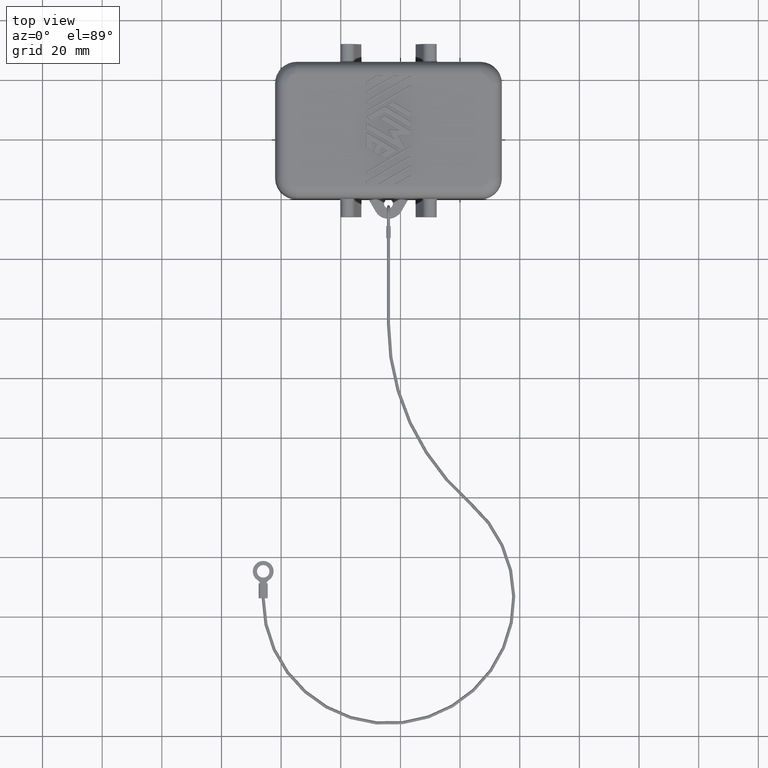
[diagram: clean part render]
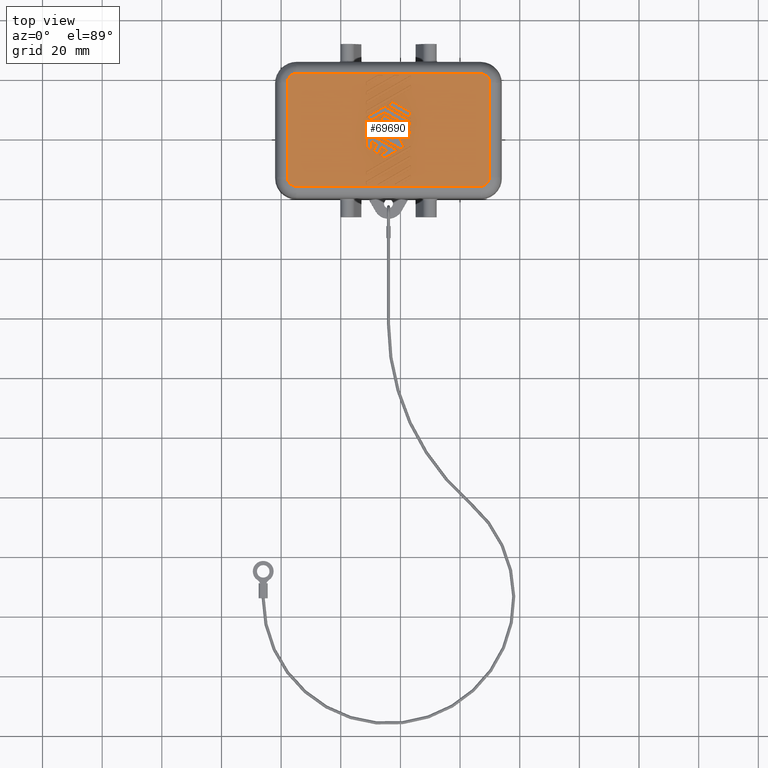
[diagram: same view with one face highlighted and labeled with its STEP entity id]
A machine part, top view. The second image highlights one B-rep face of the part: STEP entity #69690.
In plain terms, the highlighted planar face has unit normal (0, -0, -1).
Its self-contained STEP definition (entity closure, byte-faithful):
#6710=CARTESIAN_POINT('',(3.64452339403338,24.7894100356543,-17.5));
#6720=VERTEX_POINT('',#6710);
#6750=CARTESIAN_POINT('',(3.33066907387547E-17,24.7894100356543,-17.5));
#6760=DIRECTION('',(1.,2.22044604925031E-16,2.22044604925031E-16));
#6770=VECTOR('',#6760,1.);
#6780=LINE('',#6750,#6770);
#6790=CARTESIAN_POINT('',(4.68375387857468,24.7894100356543,-17.5));
#6800=VERTEX_POINT('',#6790);
#6810=EDGE_CURVE('',#6720,#6800,#6780,.T.);
#9670=CARTESIAN_POINT('',(6.06437772525531,-1.59262493562753,-17.5));
#9680=VERTEX_POINT('',#9670);
#9710=CARTESIAN_POINT('',(3.0644919560628,1.40726083356499,-17.5));
#9720=CARTESIAN_POINT('',(3.06449195925066,1.29463851105756,-17.5));
#9730=CARTESIAN_POINT('',(3.07083363684602,1.18210534542026,-17.5));
#9740=CARTESIAN_POINT('',(3.09265253355728,0.989133529365348,-17.5));
#9750=CARTESIAN_POINT('',(3.10512850437386,0.908410090754359,-17.5));
#9760=CARTESIAN_POINT('',(3.16873276785287,0.585063213576694,-17.5));
#9770=CARTESIAN_POINT('',(3.24651171568053,0.348761826884054,-17.5));
#9780=CARTESIAN_POINT('',(3.49973127288454,-0.186687310028338,-17.5));
#9790=CARTESIAN_POINT('',(3.69954000392188,-0.470408299957515,-17.5));
#9800=CARTESIAN_POINT('',(3.94312429782734,-0.713992593862981,-17.5));
#9810=CARTESIAN_POINT('',(4.11833058039966,-0.889198876435302,-17.5));
#9820=CARTESIAN_POINT('',(4.31456924718773,-1.04202243427547,-17.5));
#9830=CARTESIAN_POINT('',(4.74014340225401,-1.29592103016013,-17.5));
#9840=CARTESIAN_POINT('',(4.96783915979107,-1.39601800244634,-17.5));
#9850=CARTESIAN_POINT('',(5.37580289755995,-1.51795662614795,-17.5));
#9860=CARTESIAN_POINT('',(5.55043066844569,-1.55361416854059,-17.5));
#9870=CARTESIAN_POINT('',(5.8390431929904,-1.58627318350621,-17.5));
#9880=CARTESIAN_POINT('',(5.95166578690069,-1.59262493554124,-17.5));
#9890=CARTESIAN_POINT('',(6.06437772525531,-1.59262493562753,-17.5));
#9900=B_SPLINE_CURVE_WITH_KNOTS('',3,(#9710,#9720,#9730,#9740,#9750,
#9760,#9770,#9780,#9790,#9800,#9810,#9820,#9830,#9840,#9850,#9860,#9870,
#9880,#9890),.UNSPECIFIED.,.F.,.F.,(4,2,2,2,3,2,2,2,4),(0.,
0.562669956374639,0.970247012387034,2.20631531612829,3.92447664626049,
5.16032258106083,6.39616452604005,7.28405555892899,7.84709255107635),
.UNSPECIFIED.);
#9910=CARTESIAN_POINT('',(3.0644919560628,1.40726083356499,-17.5));
#9920=VERTEX_POINT('',#9910);
#9930=EDGE_CURVE('',#9920,#9680,#9900,.T.);
#11110=CARTESIAN_POINT('',(40.8285618986264,1.40726083356499,-17.5));
#11120=VERTEX_POINT('',#11110);
#11170=CARTESIAN_POINT('',(37.8286761294339,-1.59262493562753,-17.5));
#11180=CARTESIAN_POINT('',(37.9412984519414,-1.59262493243966,-17.5));
#11190=CARTESIAN_POINT('',(38.0538316175787,-1.5862832548443,-17.5));
#11200=CARTESIAN_POINT('',(38.2468034336072,-1.56446435813602,-17.5));
#11210=CARTESIAN_POINT('',(38.327526872192,-1.55198838732459,-17.5));
#11220=CARTESIAN_POINT('',(38.6508737493451,-1.48838412385934,-17.5));
#11230=CARTESIAN_POINT('',(38.8871751360398,-1.41060517603796,-17.5));
#11240=CARTESIAN_POINT('',(39.4226242729832,-1.15738561883675,-17.5));
#11250=CARTESIAN_POINT('',(39.7063452629375,-0.957576887787406,-17.5));
#11260=CARTESIAN_POINT('',(39.9499295568619,-0.713992593862983,-17.5));
#11270=CARTESIAN_POINT('',(40.1251358394248,-0.538786311300109,-17.5));
#11280=CARTESIAN_POINT('',(40.2779593972579,-0.342547644523721,-17.5));
#11290=CARTESIAN_POINT('',(40.5318579931346,0.0830265105162336,-17.5));
#11300=CARTESIAN_POINT('',(40.6319549654199,0.310722268038923,-17.5));
#11310=CARTESIAN_POINT('',(40.7538935891361,0.718686005817227,-17.5));
#11320=CARTESIAN_POINT('',(40.7895511315365,0.893313776728712,-17.5));
#11330=CARTESIAN_POINT('',(40.8222101465051,1.18192630129994,-17.5));
#11340=CARTESIAN_POINT('',(40.8285618985401,1.2945488952103,-17.5));
#11350=CARTESIAN_POINT('',(40.8285618986264,1.40726083356499,-17.5));
#11360=B_SPLINE_CURVE_WITH_KNOTS('',3,(#11170,#11180,#11190,#11200,
#11210,#11220,#11230,#11240,#11250,#11260,#11270,#11280,#11290,#11300,
#11310,#11320,#11330,#11340,#11350),.UNSPECIFIED.,.F.,.F.,(4,2,2,2,3,2,2
,2,4),(0.,0.562669956374504,0.970247012253541,2.20631531599435,
3.92447664625961,5.1603225809928,6.39616452590487,7.28405555892605,
7.84709255107333),.UNSPECIFIED.);
#11370=CARTESIAN_POINT('',(37.8286761294339,-1.59262493562753,-17.5));
#11380=VERTEX_POINT('',#11370);
#11390=EDGE_CURVE('',#11380,#11120,#11360,.T.);
#11930=CARTESIAN_POINT('',(15.9998191546914,24.7894100356543,-17.5));
#11940=VERTEX_POINT('',#11930);
#11970=CARTESIAN_POINT('',(3.33066907387547E-17,24.7894100356543,-17.5))
;
#11980=DIRECTION('',(1.,2.22044604925031E-16,2.22044604925031E-16));
#11990=VECTOR('',#11980,1.);
#12000=LINE('',#11970,#11990);
#12010=CARTESIAN_POINT('',(18.078280123774,24.7894100356543,-17.5));
#12020=VERTEX_POINT('',#12010);
#12030=EDGE_CURVE('',#11940,#12020,#12000,.T.);
#13780=CARTESIAN_POINT('',(12.4779825126348,30.8894100356543,-17.5));
#13790=VERTEX_POINT('',#13780);
#13840=CARTESIAN_POINT('',(30.3552929820171,-0.0749999999999981,-17.5));
#13850=DIRECTION('',(0.499999999999987,-0.866025403784446,
1.11022302462516E-16));
#13860=VECTOR('',#13850,1.);
#13870=LINE('',#13840,#13860);
#13880=EDGE_CURVE('',#13790,#11940,#13870,.T.);
#22350=CARTESIAN_POINT('',(3.64452339403339,34.1894100356543,-17.5));
#22360=VERTEX_POINT('',#22350);
#22390=CARTESIAN_POINT('',(-16.1380429636755,-0.0750000000000004,-17.5))
;
#22400=DIRECTION('',(0.500000000000003,0.866025403784437,
1.11022302462516E-16));
#22410=VECTOR('',#22400,1.);
#22420=LINE('',#22390,#22410);
#22430=CARTESIAN_POINT('',(6.87768490149532,39.7894100356543,-17.5));
#22440=VERTEX_POINT('',#22430);
#22450=EDGE_CURVE('',#22360,#22440,#22420,.T.);
#23870=CARTESIAN_POINT('',(3.64452339403336,35.9894100356543,-17.5));
#23880=VERTEX_POINT('',#23870);
#23910=CARTESIAN_POINT('',(3.64452339403337,-3.33066907387547E-17,-17.5)
);
#23920=DIRECTION('',(2.22044604925031E-16,-1.,3.69778549322349E-31));
#23930=VECTOR('',#23920,1.);
#23940=LINE('',#23910,#23930);
#23950=EDGE_CURVE('',#23880,#22360,#23940,.T.);
#24970=CARTESIAN_POINT('',(9.0716159244159,39.7894100356543,-17.5));
#24980=VERTEX_POINT('',#24970);
#25030=CARTESIAN_POINT('',(-13.8575094003765,0.0750000000000004,-17.5));
#25040=DIRECTION('',(-0.500000000000003,-0.866025403784437,
-1.11022302462516E-16));
#25050=VECTOR('',#25040,1.);
#25060=LINE('',#25030,#25050);
#25070=CARTESIAN_POINT('',(3.64452339403336,30.3894100356543,-17.5));
#25080=VERTEX_POINT('',#25070);
#25090=EDGE_CURVE('',#24980,#25080,#25060,.T.);
#25390=CARTESIAN_POINT('',(5.838454416954,39.7894100356543,-17.5));
#25400=VERTEX_POINT('',#25390);
#25430=CARTESIAN_POINT('',(-17.0906709078384,0.0750000000000004,-17.5));
#25440=DIRECTION('',(-0.500000000000003,-0.866025403784437,
-1.11022302462516E-16));
#25450=VECTOR('',#25440,1.);
#25460=LINE('',#25430,#25450);
#25470=EDGE_CURVE('',#25400,#23880,#25460,.T.);
#25600=CARTESIAN_POINT('',(-3.33066907387547E-17,39.7894100356543,-17.5)
);
#25610=DIRECTION('',(-1.,-2.22044604925031E-16,-2.22044604925031E-16));
#25620=VECTOR('',#25610,1.);
#25630=LINE('',#25600,#25620);
#25640=EDGE_CURVE('',#22440,#25400,#25630,.T.);
#25830=CARTESIAN_POINT('',(3.64452339403336,28.5894100356542,-17.5));
#25840=VERTEX_POINT('',#25830);
#25870=CARTESIAN_POINT('',(-12.9048814562135,-0.0750000000000003,-17.5))
;
#25880=DIRECTION('',(0.500000000000002,0.866025403784437,
1.11022302462516E-16));
#25890=VECTOR('',#25880,1.);
#25900=LINE('',#25870,#25890);
#25910=CARTESIAN_POINT('',(10.1108464089572,39.7894100356543,-17.5));
#25920=VERTEX_POINT('',#25910);
#25930=EDGE_CURVE('',#25840,#25920,#25900,.T.);
#28100=CARTESIAN_POINT('',(17.6163999084225,39.7894100356544,-17.5));
#28110=VERTEX_POINT('',#28100);
#28140=CARTESIAN_POINT('',(-5.31272541637066,0.0750000000000022,-17.5));
#28150=DIRECTION('',(-0.500000000000015,-0.86602540378443,
-1.11022302462516E-16));
#28160=VECTOR('',#28150,1.);
#28170=LINE('',#28140,#28160);
#28180=CARTESIAN_POINT('',(14.0368282394466,33.5894100356543,-17.5));
#28190=VERTEX_POINT('',#28180);
#28200=EDGE_CURVE('',#28110,#28190,#28170,.T.);
#28420=CARTESIAN_POINT('',(35.9761384686524,39.7894100356543,-17.5));
#28430=VERTEX_POINT('',#28420);
#28480=CARTESIAN_POINT('',(13.0470131438603,0.0749999999999998,-17.5));
#28490=DIRECTION('',(-0.499999999999999,-0.866025403784439,
-1.11022302462516E-16));
#28500=VECTOR('',#28490,1.);
#28510=LINE('',#28480,#28500);
#28520=CARTESIAN_POINT('',(27.315884430808,24.7894100356543,-17.5));
#28530=VERTEX_POINT('',#28520);
#28540=EDGE_CURVE('',#28430,#28530,#28510,.T.);
#32820=CARTESIAN_POINT('',(0.,-1.59262493562753,-17.5));
#32830=DIRECTION('',(-1.,0.,0.));
#32840=VECTOR('',#32830,1.);
#32850=LINE('',#32820,#32840);
#32860=EDGE_CURVE('',#11380,#9680,#32850,.T.);
#33030=CARTESIAN_POINT('',(19.1175106083154,24.7894100356543,-17.5));
#33040=VERTEX_POINT('',#33030);
#33070=CARTESIAN_POINT('',(3.33066907387547E-17,24.7894100356543,-17.5))
;
#33080=DIRECTION('',(1.,2.22044604925031E-16,2.22044604925031E-16));
#33090=VECTOR('',#33080,1.);
#33100=LINE('',#33070,#33090);
#33110=CARTESIAN_POINT('',(21.195971577398,24.7894100356543,-17.5));
#33120=VERTEX_POINT('',#33110);
#33130=EDGE_CURVE('',#33040,#33120,#33100,.T.);
#33450=CARTESIAN_POINT('',(13.517212997176,32.6894100356543,-17.5));
#33460=VERTEX_POINT('',#33450);
#33490=CARTESIAN_POINT('',(-5.31272541636769,0.0749999999999936,-17.5));
#33500=DIRECTION('',(-0.499999999999957,-0.866025403784463,
-1.11022302462516E-16));
#33510=VECTOR('',#33500,1.);
#33520=LINE('',#33490,#33510);
#33530=EDGE_CURVE('',#33460,#13790,#33520,.T.);
#35150=CARTESIAN_POINT('',(35.4648428643456,0.0749999999999988,-17.5));
#35160=DIRECTION('',(-0.499999999999992,0.866025403784443,
-1.11022302462516E-16));
#35170=VECTOR('',#35160,1.);
#35180=LINE('',#35150,#35170);
#35190=CARTESIAN_POINT('',(16.1152892085294,33.5894100356543,-17.5));
#35200=VERTEX_POINT('',#35190);
#35210=EDGE_CURVE('',#33120,#35200,#35180,.T.);
#38670=CARTESIAN_POINT('',(3.64452339403337,-3.33066907387547E-17,-17.5)
);
#38680=DIRECTION('',(2.22044604925031E-16,-1.,3.69778549322349E-31));
#38690=VECTOR('',#38680,1.);
#38700=LINE('',#38670,#38690);
#38710=EDGE_CURVE('',#25080,#25840,#38700,.T.);
#46150=CARTESIAN_POINT('',(-9.67171994875162,-0.0750000000000002,-17.5))
;
#46160=DIRECTION('',(0.500000000000002,0.866025403784438,
1.11022302462516E-16));
#46170=VECTOR('',#46160,1.);
#46180=LINE('',#46150,#46170);
#46190=CARTESIAN_POINT('',(13.3440079164191,39.7894100356543,-17.5));
#46200=VERTEX_POINT('',#46190);
#46210=EDGE_CURVE('',#6800,#46200,#46180,.T.);
#47720=CARTESIAN_POINT('',(3.33066907387547E-17,24.7894100356543,-17.5))
;
#47730=DIRECTION('',(1.,2.22044604925031E-16,2.22044604925031E-16));
#47740=VECTOR('',#47730,1.);
#47750=LINE('',#47720,#47740);
#47760=CARTESIAN_POINT('',(28.3551149153493,24.7894100356543,-17.5));
#47770=VERTEX_POINT('',#47760);
#47780=EDGE_CURVE('',#28530,#47770,#47750,.T.);
#50100=CARTESIAN_POINT('',(-3.33066907387547E-17,39.7894100356543,-17.5)
);
#50110=DIRECTION('',(-1.,-2.22044604925031E-16,-2.22044604925031E-16));
#50120=VECTOR('',#50110,1.);
#50130=LINE('',#50100,#50120);
#50140=EDGE_CURVE('',#25920,#24980,#50130,.T.);
#54660=CARTESIAN_POINT('',(3.0644919560628,63.1715592377436,-17.5));
#54670=VERTEX_POINT('',#54660);
#54770=CARTESIAN_POINT('',(3.0644919560628,0.,-17.5));
#54780=DIRECTION('',(0.,1.,0.));
#54790=VECTOR('',#54780,1.);
#54800=LINE('',#54770,#54790);
#54810=EDGE_CURVE('',#9920,#54670,#54800,.T.);
#60390=CARTESIAN_POINT('',(13.999641088023,-0.0750000000000004,-17.5));
#60400=DIRECTION('',(0.500000000000003,0.866025403784437,
1.11022302462516E-16));
#60410=VECTOR('',#60400,1.);
#60420=LINE('',#60390,#60410);
#60430=CARTESIAN_POINT('',(37.0153689531938,39.7894100356543,-17.5));
#60440=VERTEX_POINT('',#60430);
#60450=EDGE_CURVE('',#47770,#60440,#60420,.T.);
#61530=CARTESIAN_POINT('',(-3.33066907387547E-17,39.7894100356543,-17.5)
);
#61540=DIRECTION('',(-1.,-2.22044604925031E-16,-2.22044604925031E-16));
#61550=VECTOR('',#61540,1.);
#61560=LINE('',#61530,#61550);
#61570=EDGE_CURVE('',#60440,#28430,#61560,.T.);
#64380=CARTESIAN_POINT('',(40.8285618986264,63.1715592377436,-17.5));
#64390=VERTEX_POINT('',#64380);
#64420=CARTESIAN_POINT('',(40.8285618986264,0.,-17.5));
#64430=DIRECTION('',(0.,-1.,0.));
#64440=VECTOR('',#64430,1.);
#64450=LINE('',#64420,#64440);
#64460=EDGE_CURVE('',#64390,#11120,#64450,.T.);
#64990=CARTESIAN_POINT('',(0.,0.,-17.5));
#65000=DIRECTION('',(0.,0.,1.));
#65010=DIRECTION('',(1.,0.,0.));
#65020=AXIS2_PLACEMENT_3D('',#64990,#65000,#65010);
#65030=PLANE('',#65020);
#65040=ORIENTED_EDGE('',*,*,#6810,.T.);
#65050=CARTESIAN_POINT('',(-10.6243478929145,0.0750000000000002,-17.5));
#65060=DIRECTION('',(-0.500000000000002,-0.866025403784438,
-1.11022302462516E-16));
#65070=VECTOR('',#65060,1.);
#65080=LINE('',#65050,#65070);
#65090=CARTESIAN_POINT('',(12.3047774318778,39.7894100356543,-17.5));
#65100=VERTEX_POINT('',#65090);
#65110=EDGE_CURVE('',#65100,#6720,#65080,.T.);
#65120=ORIENTED_EDGE('',*,*,#65110,.T.);
#65130=CARTESIAN_POINT('',(-3.33066907387547E-17,39.7894100356543,-17.5)
);
#65140=DIRECTION('',(-1.,-2.22044604925031E-16,-2.22044604925031E-16));
#65150=VECTOR('',#65140,1.);
#65160=LINE('',#65130,#65150);
#65170=EDGE_CURVE('',#46200,#65100,#65160,.T.);
#65180=ORIENTED_EDGE('',*,*,#65170,.T.);
#65190=ORIENTED_EDGE('',*,*,#46210,.T.);
#65200=EDGE_LOOP('',(#65190,#65180,#65120,#65040));
#65210=FACE_BOUND('',#65200,.T.);
#65220=ORIENTED_EDGE('',*,*,#47780,.T.);
#65230=ORIENTED_EDGE('',*,*,#28540,.T.);
#65240=ORIENTED_EDGE('',*,*,#61570,.T.);
#65250=ORIENTED_EDGE('',*,*,#60450,.T.);
#65260=EDGE_LOOP('',(#65250,#65240,#65230,#65220));
#65270=FACE_BOUND('',#65260,.T.);
#65280=ORIENTED_EDGE('',*,*,#33530,.T.);
#65290=CARTESIAN_POINT('',(32.3471514107217,0.0749999999999995,-17.5));
#65300=DIRECTION('',(-0.499999999999997,0.86602540378444,
-1.11022302462516E-16));
#65310=VECTOR('',#65300,1.);
#65320=LINE('',#65290,#65310);
#65330=EDGE_CURVE('',#12020,#33460,#65320,.T.);
#65340=ORIENTED_EDGE('',*,*,#65330,.T.);
#65350=ORIENTED_EDGE('',*,*,#12030,.T.);
#65360=ORIENTED_EDGE('',*,*,#13880,.T.);
#65370=EDGE_LOOP('',(#65360,#65350,#65340,#65280));
#65380=FACE_BOUND('',#65370,.T.);
#65390=CARTESIAN_POINT('',(40.5455252332107,0.0749999999999901,-17.5));
#65400=DIRECTION('',(-0.499999999999934,0.866025403784477,
-1.11022302462516E-16));
#65410=VECTOR('',#65400,1.);
#65420=LINE('',#65390,#65410);
#65430=CARTESIAN_POINT('',(18.6556303929637,37.9894100356545,-17.5));
#65440=VERTEX_POINT('',#65430);
#65450=EDGE_CURVE('',#65440,#28110,#65420,.T.);
#65460=ORIENTED_EDGE('',*,*,#65450,.T.);
#65470=CARTESIAN_POINT('',(-3.32086698766413,-0.0749999999999959,-17.5))
;
#65480=DIRECTION('',(0.499999999999973,0.866025403784454,
1.11022302462516E-16));
#65490=VECTOR('',#65480,1.);
#65500=LINE('',#65470,#65490);
#65510=EDGE_CURVE('',#35200,#65440,#65500,.T.);
#65520=ORIENTED_EDGE('',*,*,#65510,.T.);
#65530=ORIENTED_EDGE('',*,*,#35210,.T.);
#65540=ORIENTED_EDGE('',*,*,#33130,.T.);
#65550=CARTESIAN_POINT('',(33.472984435642,-0.0750000000000014,-17.5));
#65560=DIRECTION('',(0.500000000000009,-0.866025403784433,
1.11022302462516E-16));
#65570=VECTOR('',#65560,1.);
#65580=LINE('',#65550,#65570);
#65590=EDGE_CURVE('',#28190,#33040,#65580,.T.);
#65600=ORIENTED_EDGE('',*,*,#65590,.T.);
#65610=ORIENTED_EDGE('',*,*,#28200,.T.);
#65620=EDGE_LOOP('',(#65610,#65600,#65540,#65530,#65520,#65460));
#65630=FACE_BOUND('',#65620,.T.);
#65640=ORIENTED_EDGE('',*,*,#25090,.T.);
#65650=ORIENTED_EDGE('',*,*,#50140,.T.);
#65660=ORIENTED_EDGE('',*,*,#25930,.T.);
#65670=ORIENTED_EDGE('',*,*,#38710,.T.);
#65680=EDGE_LOOP('',(#65670,#65660,#65650,#65640));
#65690=FACE_BOUND('',#65680,.T.);
#65700=ORIENTED_EDGE('',*,*,#25470,.T.);
#65710=ORIENTED_EDGE('',*,*,#25640,.T.);
#65720=ORIENTED_EDGE('',*,*,#22450,.T.);
#65730=ORIENTED_EDGE('',*,*,#23950,.T.);
#65740=EDGE_LOOP('',(#65730,#65720,#65710,#65700));
#65750=FACE_BOUND('',#65740,.T.);
#65760=CARTESIAN_POINT('',(-7.47092723156466E-16,37.9894100356544,-17.5)
);
#65770=DIRECTION('',(1.,-4.98061815437644E-15,2.22044604925031E-16));
#65780=VECTOR('',#65770,1.);
#65790=LINE('',#65760,#65780);
#65800=CARTESIAN_POINT('',(25.8147737309151,37.9894100356543,-17.5));
#65810=VERTEX_POINT('',#65800);
#65820=CARTESIAN_POINT('',(28.8169951307009,37.9894100356543,-17.5));
#65830=VERTEX_POINT('',#65820);
#65840=EDGE_CURVE('',#65810,#65830,#65790,.T.);
#65850=ORIENTED_EDGE('',*,*,#65840,.T.);
#65860=CARTESIAN_POINT('',(47.7479698413546,0.,-17.5));
#65870=DIRECTION('',(-0.499999999999991,0.866025403784444,0.));
#65880=VECTOR('',#65870,1.);
#65890=LINE('',#65860,#65880);
#65900=CARTESIAN_POINT('',(26.865884430808,36.1688328990604,-17.5));
#65910=VERTEX_POINT('',#65900);
#65920=EDGE_CURVE('',#65910,#65810,#65890,.T.);
#65930=ORIENTED_EDGE('',*,*,#65920,.T.);
#65940=CARTESIAN_POINT('',(-0.0749999999999966,20.6145060207277,-17.5));
#65950=DIRECTION('',(-0.866025403784452,-0.499999999999977,
-1.94289029309402E-16));
#65960=VECTOR('',#65950,1.);
#65970=LINE('',#65940,#65960);
#65980=CARTESIAN_POINT('',(29.1175504806478,37.4688328990604,-17.5));
#65990=VERTEX_POINT('',#65980);
#66000=EDGE_CURVE('',#65990,#65910,#65970,.T.);
#66010=ORIENTED_EDGE('',*,*,#66000,.T.);
#66020=CARTESIAN_POINT('',(50.7068899709519,0.0749999999999998,-17.5));
#66030=DIRECTION('',(-0.499999999999999,0.866025403784439,
-1.11022302462516E-16));
#66040=VECTOR('',#66030,1.);
#66050=LINE('',#66020,#66040);
#66060=CARTESIAN_POINT('',(30.0175504806476,35.9099871722483,-17.5));
#66070=VERTEX_POINT('',#66060);
#66080=EDGE_CURVE('',#66070,#65990,#66050,.T.);
#66090=ORIENTED_EDGE('',*,*,#66080,.T.);
#66100=CARTESIAN_POINT('',(0.0749999999999982,18.622647592023,-17.5));
#66110=DIRECTION('',(0.866025403784446,0.499999999999988,
1.94289029309402E-16));
#66120=VECTOR('',#66110,1.);
#66130=LINE('',#66100,#66120);
#66140=CARTESIAN_POINT('',(27.765884430808,34.6099871722483,-17.5));
#66150=VERTEX_POINT('',#66140);
#66160=EDGE_CURVE('',#66150,#66070,#66130,.T.);
#66170=ORIENTED_EDGE('',*,*,#66160,.T.);
#66180=CARTESIAN_POINT('',(47.7479698413584,0.,-17.5));
#66190=DIRECTION('',(-0.500000000000062,0.866025403784403,0.));
#66200=VECTOR('',#66190,1.);
#66210=LINE('',#66180,#66200);
#66220=CARTESIAN_POINT('',(28.8169951307012,32.7894100356544,-17.5));
#66230=VERTEX_POINT('',#66220);
#66240=EDGE_CURVE('',#66230,#66150,#66210,.T.);
#66250=ORIENTED_EDGE('',*,*,#66240,.T.);
#66260=CARTESIAN_POINT('',(9.92932169023657,0.0749999999999992,-17.5));
#66270=DIRECTION('',(-0.499999999999995,-0.866025403784442,
-1.11022302462516E-16));
#66280=VECTOR('',#66270,1.);
#66290=LINE('',#66260,#66280);
#66300=CARTESIAN_POINT('',(30.318105830594,35.3894100356547,-17.5));
#66310=VERTEX_POINT('',#66300);
#66320=EDGE_CURVE('',#66310,#66230,#66290,.T.);
#66330=ORIENTED_EDGE('',*,*,#66320,.T.);
#66340=CARTESIAN_POINT('',(50.7068899709502,0.0749999999999948,-17.5));
#66350=DIRECTION('',(-0.499999999999965,0.866025403784459,
-1.11022302462516E-16));
#66360=VECTOR('',#66350,1.);
#66370=LINE('',#66340,#66360);
#66380=CARTESIAN_POINT('',(31.3573363151354,33.5894100356544,-17.5));
#66390=VERTEX_POINT('',#66380);
#66400=EDGE_CURVE('',#66390,#66310,#66370,.T.);
#66410=ORIENTED_EDGE('',*,*,#66400,.T.);
#66420=CARTESIAN_POINT('',(11.9211801189413,-0.0749999999999973,-17.5));
#66430=DIRECTION('',(0.499999999999982,0.866025403784449,
1.11022302462516E-16));
#66440=VECTOR('',#66430,1.);
#66450=LINE('',#66420,#66440);
#66460=CARTESIAN_POINT('',(28.8169951307012,29.1894100356544,-17.5));
#66470=VERTEX_POINT('',#66460);
#66480=EDGE_CURVE('',#66470,#66390,#66450,.T.);
#66490=ORIENTED_EDGE('',*,*,#66480,.T.);
#66500=CARTESIAN_POINT('',(45.7128101424625,-0.0750000000000023,-17.5));
#66510=DIRECTION('',(0.500000000000015,-0.86602540378443,
1.11022302462516E-16));
#66520=VECTOR('',#66510,1.);
#66530=LINE('',#66500,#66520);
#66540=CARTESIAN_POINT('',(22.697082277291,39.7894100356543,-17.5));
#66550=VERTEX_POINT('',#66540);
#66560=EDGE_CURVE('',#66550,#66470,#66530,.T.);
#66570=ORIENTED_EDGE('',*,*,#66560,.T.);
#66580=CARTESIAN_POINT('',(-3.33066907387547E-17,39.7894100356543,-17.5)
);
#66590=DIRECTION('',(-1.,-2.22044604925031E-16,-2.22044604925031E-16));
#66600=VECTOR('',#66590,1.);
#66610=LINE('',#66580,#66600);
#66620=CARTESIAN_POINT('',(27.7777646461598,39.7894100356543,-17.5));
#66630=VERTEX_POINT('',#66620);
#66640=EDGE_CURVE('',#66630,#66550,#66610,.T.);
#66650=ORIENTED_EDGE('',*,*,#66640,.T.);
#66660=CARTESIAN_POINT('',(50.7068899709476,0.0749999999999892,-17.5));
#66670=DIRECTION('',(-0.499999999999928,0.86602540378448,
-1.11022302462516E-16));
#66680=VECTOR('',#66670,1.);
#66690=LINE('',#66660,#66680);
#66700=EDGE_CURVE('',#65830,#66630,#66690,.T.);
#66710=ORIENTED_EDGE('',*,*,#66700,.T.);
#66720=EDGE_LOOP('',(#66710,#66650,#66570,#66490,#66410,#66330,#66250,
#66170,#66090,#66010,#65930,#65850));
#66730=FACE_BOUND('',#66720,.T.);
#66740=CARTESIAN_POINT('',(42.5951186888381,-0.0750000000000007,-17.5));
#66750=DIRECTION('',(0.500000000000004,-0.866025403784436,
1.11022302462516E-16));
#66760=VECTOR('',#66750,1.);
#66770=LINE('',#66740,#66760);
#66780=CARTESIAN_POINT('',(19.5793908236672,39.7894100356543,-17.5));
#66790=VERTEX_POINT('',#66780);
#66800=CARTESIAN_POINT('',(24.891013300212,30.5894100356541,-17.5));
#66810=VERTEX_POINT('',#66800);
#66820=EDGE_CURVE('',#66790,#66810,#66770,.T.);
#66830=ORIENTED_EDGE('',*,*,#66820,.T.);
#66840=CARTESIAN_POINT('',(-3.33066907387547E-17,39.7894100356543,-17.5)
);
#66850=DIRECTION('',(-1.,-2.22044604925031E-16,-2.22044604925031E-16));
#66860=VECTOR('',#66850,1.);
#66870=LINE('',#66840,#66860);
#66880=CARTESIAN_POINT('',(21.6578517927498,39.7894100356543,-17.5));
#66890=VERTEX_POINT('',#66880);
#66900=EDGE_CURVE('',#66890,#66790,#66870,.T.);
#66910=ORIENTED_EDGE('',*,*,#66900,.T.);
#66920=CARTESIAN_POINT('',(44.5869771175418,0.0749999999999995,-17.5));
#66930=DIRECTION('',(-0.499999999999997,0.86602540378444,
-1.11022302462516E-16));
#66940=VECTOR('',#66930,1.);
#66950=LINE('',#66920,#66940);
#66960=CARTESIAN_POINT('',(28.2973798884304,28.2894100356544,-17.5));
#66970=VERTEX_POINT('',#66960);
#66980=EDGE_CURVE('',#66970,#66890,#66950,.T.);
#66990=ORIENTED_EDGE('',*,*,#66980,.T.);
#67000=CARTESIAN_POINT('',(11.921180118941,-0.074999999999998,-17.5));
#67010=DIRECTION('',(0.499999999999987,0.866025403784446,
1.11022302462516E-16));
#67020=VECTOR('',#67010,1.);
#67030=LINE('',#67000,#67020);
#67040=CARTESIAN_POINT('',(27.5417174557279,26.9805643088424,-17.5));
#67050=VERTEX_POINT('',#67040);
#67060=EDGE_CURVE('',#67050,#66970,#67030,.T.);
#67070=ORIENTED_EDGE('',*,*,#67060,.T.);
#67080=CARTESIAN_POINT('',(-0.0749999999999971,42.9250835660399,-17.5));
#67090=DIRECTION('',(0.86602540378445,-0.499999999999981,
1.94289029309402E-16));
#67100=VECTOR('',#67090,1.);
#67110=LINE('',#67080,#67100);
#67120=CARTESIAN_POINT('',(23.7465269273447,29.1717185820302,-17.5));
#67130=VERTEX_POINT('',#67120);
#67140=EDGE_CURVE('',#67130,#67050,#67110,.T.);
#67150=ORIENTED_EDGE('',*,*,#67140,.T.);
#67160=CARTESIAN_POINT('',(23.7465269273445,-5.86745569682199E-16,-17.5)
);
#67170=DIRECTION('',(3.91163713121466E-15,1.,7.88860905221012E-31));
#67180=VECTOR('',#67170,1.);
#67190=LINE('',#67160,#67180);
#67200=CARTESIAN_POINT('',(23.7465269273446,24.7894100356543,-17.5));
#67210=VERTEX_POINT('',#67200);
#67220=EDGE_CURVE('',#67210,#67130,#67190,.T.);
#67230=ORIENTED_EDGE('',*,*,#67220,.T.);
#67240=CARTESIAN_POINT('',(3.33066907387547E-17,24.7894100356543,-17.5))
;
#67250=DIRECTION('',(1.,2.22044604925031E-16,2.22044604925031E-16));
#67260=VECTOR('',#67250,1.);
#67270=LINE('',#67240,#67260);
#67280=CARTESIAN_POINT('',(22.2352020619395,24.7894100356543,-17.5));
#67290=VERTEX_POINT('',#67280);
#67300=EDGE_CURVE('',#67290,#67210,#67270,.T.);
#67310=ORIENTED_EDGE('',*,*,#67300,.T.);
#67320=CARTESIAN_POINT('',(36.5906758892662,-0.0750000000000017,-17.5));
#67330=DIRECTION('',(0.500000000000011,-0.866025403784432,
1.11022302462516E-16));
#67340=VECTOR('',#67330,1.);
#67350=LINE('',#67320,#67340);
#67360=CARTESIAN_POINT('',(17.1545196930706,33.5894100356544,-17.5));
#67370=VERTEX_POINT('',#67360);
#67380=EDGE_CURVE('',#67370,#67290,#67350,.T.);
#67390=ORIENTED_EDGE('',*,*,#67380,.T.);
#67400=CARTESIAN_POINT('',(-2.19503396274756,0.0750000000000047,-17.5));
#67410=DIRECTION('',(-0.500000000000031,-0.866025403784421,
-1.11022302462516E-16));
#67420=VECTOR('',#67410,1.);
#67430=LINE('',#67400,#67420);
#67440=CARTESIAN_POINT('',(18.1937501776121,35.3894100356545,-17.5));
#67450=VERTEX_POINT('',#67440);
#67460=EDGE_CURVE('',#67450,#67370,#67430,.T.);
#67470=ORIENTED_EDGE('',*,*,#67460,.T.);
#67480=CARTESIAN_POINT('',(38.5825343179698,0.075,-17.5));
#67490=DIRECTION('',(-0.5,0.866025403784439,-1.11022302462516E-16));
#67500=VECTOR('',#67490,1.);
#67510=LINE('',#67480,#67500);
#67520=CARTESIAN_POINT('',(21.9465269273446,28.8894100356542,-17.5));
#67530=VERTEX_POINT('',#67520);
#67540=EDGE_CURVE('',#67530,#67450,#67510,.T.);
#67550=ORIENTED_EDGE('',*,*,#67540,.T.);
#67560=CARTESIAN_POINT('',(21.9465269273447,-2.86782444999521E-16,-17.5)
);
#67570=DIRECTION('',(1.91188296666347E-15,-1.,7.88860905221012E-31));
#67580=VECTOR('',#67570,1.);
#67590=LINE('',#67560,#67580);
#67600=CARTESIAN_POINT('',(21.9465269273447,32.2894100356542,-17.5));
#67610=VERTEX_POINT('',#67600);
#67620=EDGE_CURVE('',#67610,#67530,#67590,.T.);
#67630=ORIENTED_EDGE('',*,*,#67620,.T.);
#67640=CARTESIAN_POINT('',(0.0749999999999994,44.9169419947447,-17.5));
#67650=DIRECTION('',(-0.866025403784441,0.499999999999996,
-1.94289029309402E-16));
#67660=VECTOR('',#67650,1.);
#67670=LINE('',#67640,#67660);
#67680=EDGE_CURVE('',#66810,#67610,#67670,.T.);
#67690=ORIENTED_EDGE('',*,*,#67680,.T.);
#67700=EDGE_LOOP('',(#67690,#67630,#67550,#67470,#67390,#67310,#67230,
#67150,#67070,#66990,#66910,#66830));
#67710=FACE_BOUND('',#67700,.T.);
#67720=CARTESIAN_POINT('',(3.33066907387547E-17,24.7894100356543,-17.5))
;
#67730=DIRECTION('',(1.,2.22044604925031E-16,2.22044604925031E-16));
#67740=VECTOR('',#67730,1.);
#67750=LINE('',#67720,#67740);
#67760=CARTESIAN_POINT('',(33.7822074457318,24.7894100356543,-17.5));
#67770=VERTEX_POINT('',#67760);
#67780=CARTESIAN_POINT('',(34.8214379302733,24.7894100356545,-17.5));
#67790=VERTEX_POINT('',#67780);
#67800=EDGE_CURVE('',#67770,#67790,#67750,.T.);
#67810=ORIENTED_EDGE('',*,*,#67800,.T.);
#67820=CARTESIAN_POINT('',(19.5133361587839,0.0750000000000003,-17.5));
#67830=DIRECTION('',(-0.500000000000002,-0.866025403784437,
-1.11022302462516E-16));
#67840=VECTOR('',#67830,1.);
#67850=LINE('',#67820,#67840);
#67860=CARTESIAN_POINT('',(40.2485304606557,35.9894100356544,-17.5));
#67870=VERTEX_POINT('',#67860);
#67880=EDGE_CURVE('',#67870,#67770,#67850,.T.);
#67890=ORIENTED_EDGE('',*,*,#67880,.T.);
#67900=CARTESIAN_POINT('',(40.2485304606557,3.33066907387547E-17,-17.5))
;
#67910=DIRECTION('',(-2.22044604925031E-16,1.,-3.69778549322349E-31));
#67920=VECTOR('',#67910,1.);
#67930=LINE('',#67900,#67920);
#67940=CARTESIAN_POINT('',(40.2485304606558,34.1894100356544,-17.5));
#67950=VERTEX_POINT('',#67940);
#67960=EDGE_CURVE('',#67950,#67870,#67930,.T.);
#67970=ORIENTED_EDGE('',*,*,#67960,.T.);
#67980=CARTESIAN_POINT('',(20.4659641029468,-0.0750000000000004,-17.5));
#67990=DIRECTION('',(0.500000000000003,0.866025403784437,
1.11022302462516E-16));
#68000=VECTOR('',#67990,1.);
#68010=LINE('',#67980,#68000);
#68020=EDGE_CURVE('',#67790,#67950,#68010,.T.);
#68030=ORIENTED_EDGE('',*,*,#68020,.T.);
#68040=EDGE_LOOP('',(#68030,#67970,#67890,#67810));
#68050=FACE_BOUND('',#68040,.T.);
#68060=CARTESIAN_POINT('',(23.6991256104087,-0.0750000000000004,-17.5));
#68070=DIRECTION('',(0.500000000000003,0.866025403784437,
1.11022302462516E-16));
#68080=VECTOR('',#68070,1.);
#68090=LINE('',#68060,#68080);
#68100=CARTESIAN_POINT('',(38.0545994377351,24.7894100356544,-17.5));
#68110=VERTEX_POINT('',#68100);
#68120=CARTESIAN_POINT('',(40.2485304606557,28.5894100356544,-17.5));
#68130=VERTEX_POINT('',#68120);
#68140=EDGE_CURVE('',#68110,#68130,#68090,.T.);
#68150=ORIENTED_EDGE('',*,*,#68140,.T.);
#68160=CARTESIAN_POINT('',(3.33066907387547E-17,24.7894100356543,-17.5))
;
#68170=DIRECTION('',(1.,2.22044604925031E-16,2.22044604925031E-16));
#68180=VECTOR('',#68170,1.);
#68190=LINE('',#68160,#68180);
#68200=CARTESIAN_POINT('',(37.0153689531938,24.7894100356543,-17.5));
#68210=VERTEX_POINT('',#68200);
#68220=EDGE_CURVE('',#68210,#68110,#68190,.T.);
#68230=ORIENTED_EDGE('',*,*,#68220,.T.);
#68240=CARTESIAN_POINT('',(22.7464976662458,0.0750000000000004,-17.5));
#68250=DIRECTION('',(-0.500000000000003,-0.866025403784437,
-1.11022302462516E-16));
#68260=VECTOR('',#68250,1.);
#68270=LINE('',#68240,#68260);
#68280=CARTESIAN_POINT('',(40.2485304606557,30.3894100356543,-17.5));
#68290=VERTEX_POINT('',#68280);
#68300=EDGE_CURVE('',#68290,#68210,#68270,.T.);
#68310=ORIENTED_EDGE('',*,*,#68300,.T.);
#68320=CARTESIAN_POINT('',(40.2485304606557,3.33066907387547E-17,-17.5))
;
#68330=DIRECTION('',(-2.22044604925031E-16,1.,-3.69778549322349E-31));
#68340=VECTOR('',#68330,1.);
#68350=LINE('',#68320,#68340);
#68360=EDGE_CURVE('',#68130,#68290,#68350,.T.);
#68370=ORIENTED_EDGE('',*,*,#68360,.T.);
#68380=EDGE_LOOP('',(#68370,#68310,#68230,#68150));
#68390=FACE_BOUND('',#68380,.T.);
#68400=CARTESIAN_POINT('',(3.33066907387547E-17,24.7894100356543,-17.5))
;
#68410=DIRECTION('',(1.,2.22044604925031E-16,2.22044604925031E-16));
#68420=VECTOR('',#68410,1.);
#68430=LINE('',#68400,#68420);
#68440=CARTESIAN_POINT('',(30.5490459382699,24.7894100356543,-17.5));
#68450=VERTEX_POINT('',#68440);
#68460=CARTESIAN_POINT('',(31.5882764228113,24.7894100356543,-17.5));
#68470=VERTEX_POINT('',#68460);
#68480=EDGE_CURVE('',#68450,#68470,#68430,.T.);
#68490=ORIENTED_EDGE('',*,*,#68480,.T.);
#68500=CARTESIAN_POINT('',(16.280174651322,0.0750000000000002,-17.5));
#68510=DIRECTION('',(-0.500000000000002,-0.866025403784438,
-1.11022302462516E-16));
#68520=VECTOR('',#68510,1.);
#68530=LINE('',#68500,#68520);
#68540=CARTESIAN_POINT('',(39.2092999761143,39.7894100356543,-17.5));
#68550=VERTEX_POINT('',#68540);
#68560=EDGE_CURVE('',#68550,#68450,#68530,.T.);
#68570=ORIENTED_EDGE('',*,*,#68560,.T.);
#68580=CARTESIAN_POINT('',(-3.33066907387547E-17,39.7894100356543,-17.5)
);
#68590=DIRECTION('',(-1.,-2.22044604925031E-16,-2.22044604925031E-16));
#68600=VECTOR('',#68590,1.);
#68610=LINE('',#68580,#68600);
#68620=CARTESIAN_POINT('',(40.2485304606557,39.7894100356543,-17.5));
#68630=VERTEX_POINT('',#68620);
#68640=EDGE_CURVE('',#68630,#68550,#68610,.T.);
#68650=ORIENTED_EDGE('',*,*,#68640,.T.);
#68660=CARTESIAN_POINT('',(17.232802595485,-0.0750000000000003,-17.5));
#68670=DIRECTION('',(0.500000000000002,0.866025403784437,
1.11022302462516E-16));
#68680=VECTOR('',#68670,1.);
#68690=LINE('',#68660,#68680);
#68700=EDGE_CURVE('',#68470,#68630,#68690,.T.);
#68710=ORIENTED_EDGE('',*,*,#68700,.T.);
#68720=EDGE_LOOP('',(#68710,#68650,#68570,#68490));
#68730=FACE_BOUND('',#68720,.T.);
#68740=CARTESIAN_POINT('',(-6.43855844128969,-0.0750000000000003,-17.5))
;
#68750=DIRECTION('',(0.500000000000002,0.866025403784437,
1.11022302462516E-16));
#68760=VECTOR('',#68750,1.);
#68770=LINE('',#68740,#68760);
#68780=CARTESIAN_POINT('',(7.91691538603663,24.7894100356543,-17.5));
#68790=VERTEX_POINT('',#68780);
#68800=CARTESIAN_POINT('',(16.5771694238811,39.7894100356543,-17.5));
#68810=VERTEX_POINT('',#68800);
#68820=EDGE_CURVE('',#68790,#68810,#68770,.T.);
#68830=ORIENTED_EDGE('',*,*,#68820,.T.);
#68840=CARTESIAN_POINT('',(3.33066907387547E-17,24.7894100356543,-17.5))
;
#68850=DIRECTION('',(1.,2.22044604925031E-16,2.22044604925031E-16));
#68860=VECTOR('',#68850,1.);
#68870=LINE('',#68840,#68860);
#68880=CARTESIAN_POINT('',(6.87768490149525,24.7894100356543,-17.5));
#68890=VERTEX_POINT('',#68880);
#68900=EDGE_CURVE('',#68890,#68790,#68870,.T.);
#68910=ORIENTED_EDGE('',*,*,#68900,.T.);
#68920=CARTESIAN_POINT('',(-7.39118638545265,0.0750000000000004,-17.5));
#68930=DIRECTION('',(-0.500000000000003,-0.866025403784437,
-1.11022302462516E-16));
#68940=VECTOR('',#68930,1.);
#68950=LINE('',#68920,#68940);
#68960=CARTESIAN_POINT('',(15.5379389393397,39.7894100356543,-17.5));
#68970=VERTEX_POINT('',#68960);
#68980=EDGE_CURVE('',#68970,#68890,#68950,.T.);
#68990=ORIENTED_EDGE('',*,*,#68980,.T.);
#69000=CARTESIAN_POINT('',(-3.33066907387547E-17,39.7894100356543,-17.5)
);
#69010=DIRECTION('',(-1.,-2.22044604925031E-16,-2.22044604925031E-16));
#69020=VECTOR('',#69010,1.);
#69030=LINE('',#69000,#69020);
#69040=EDGE_CURVE('',#68810,#68970,#69030,.T.);
#69050=ORIENTED_EDGE('',*,*,#69040,.T.);
#69060=EDGE_LOOP('',(#69050,#68990,#68910,#68830));
#69070=FACE_BOUND('',#69060,.T.);
#69080=ORIENTED_EDGE('',*,*,#54810,.T.);
#69090=ORIENTED_EDGE('',*,*,#9930,.F.);
#69100=ORIENTED_EDGE('',*,*,#32860,.T.);
#69110=ORIENTED_EDGE('',*,*,#11390,.F.);
#69120=ORIENTED_EDGE('',*,*,#64460,.T.);
#69130=CARTESIAN_POINT('',(40.8285618986264,63.1715592377436,-17.5));
#69140=CARTESIAN_POINT('',(40.8285618954386,63.284181560251,-17.5));
#69150=CARTESIAN_POINT('',(40.8222202178432,63.3967147258883,-17.5));
#69160=CARTESIAN_POINT('',(40.8004013211319,63.5896865419433,-17.5));
#69170=CARTESIAN_POINT('',(40.7879253503154,63.6704099805542,-17.5));
#69180=CARTESIAN_POINT('',(40.7243210868363,63.9937568577319,-17.5));
#69190=CARTESIAN_POINT('',(40.6465421390087,64.2300582444246,-17.5));
#69200=CARTESIAN_POINT('',(40.3933225818047,64.765507381337,-17.5));
#69210=CARTESIAN_POINT('',(40.1935138507673,65.0492283712661,-17.5));
#69220=CARTESIAN_POINT('',(39.9499295568619,65.2928126651716,-17.5));
#69230=CARTESIAN_POINT('',(39.7747232742896,65.4680189477439,-17.5));
#69240=CARTESIAN_POINT('',(39.5784846075015,65.6208425055841,-17.5));
#69250=CARTESIAN_POINT('',(39.1529104524352,65.8747411014687,-17.5));
#69260=CARTESIAN_POINT('',(38.9252146948981,65.9748380737549,-17.5));
#69270=CARTESIAN_POINT('',(38.5172509571293,66.0967766974565,-17.5));
#69280=CARTESIAN_POINT('',(38.3426231862435,66.1324342398492,-17.5));
#69290=CARTESIAN_POINT('',(38.0540106616988,66.1650932548148,-17.5));
#69300=CARTESIAN_POINT('',(37.9413880677885,66.1714450068498,-17.5));
#69310=CARTESIAN_POINT('',(37.8286761294339,66.1714450069361,-17.5));
#69320=B_SPLINE_CURVE_WITH_KNOTS('',3,(#69130,#69140,#69150,#69160,
#69170,#69180,#69190,#69200,#69210,#69220,#69230,#69240,#69250,#69260,
#69270,#69280,#69290,#69300,#69310),.UNSPECIFIED.,.F.,.F.,(4,2,2,2,3,2,2
,2,4),(0.,0.56266995637467,0.970247012387112,2.20631531612844,
3.92447664626048,5.16032258106076,6.39616452603996,7.28405555892881,
7.84709255107612),.UNSPECIFIED.);
#69330=CARTESIAN_POINT('',(37.8286761294339,66.1714450069361,-17.5));
#69340=VERTEX_POINT('',#69330);
#69350=EDGE_CURVE('',#64390,#69340,#69320,.T.);
#69360=ORIENTED_EDGE('',*,*,#69350,.F.);
#69370=CARTESIAN_POINT('',(0.,66.1714450069361,-17.5));
#69380=DIRECTION('',(1.,0.,0.));
#69390=VECTOR('',#69380,1.);
#69400=LINE('',#69370,#69390);
#69410=CARTESIAN_POINT('',(6.06437772525531,66.1714450069361,-17.5));
#69420=VERTEX_POINT('',#69410);
#69430=EDGE_CURVE('',#69420,#69340,#69400,.T.);
#69440=ORIENTED_EDGE('',*,*,#69430,.T.);
#69450=CARTESIAN_POINT('',(6.06437772525531,66.1714450069361,-17.5));
#69460=CARTESIAN_POINT('',(5.95175540274789,66.1714450037482,-17.5));
#69470=CARTESIAN_POINT('',(5.83922223711059,66.1651033261529,-17.5));
#69480=CARTESIAN_POINT('',(5.64625042105305,66.1432844294414,-17.5));
#69490=CARTESIAN_POINT('',(5.56552698243945,66.1308084586243,-17.5));
#69500=CARTESIAN_POINT('',(5.24218010525935,66.0672041951439,-17.5));
#69510=CARTESIAN_POINT('',(5.00587871856691,65.9894252473156,-17.5));
#69520=CARTESIAN_POINT('',(4.4704295816576,65.7362056901113,-17.5));
#69530=CARTESIAN_POINT('',(4.18670859173092,65.5363969590751,-17.5));
#69540=CARTESIAN_POINT('',(3.94312429782734,65.2928126651716,-17.5));
#69550=CARTESIAN_POINT('',(3.76791801525407,65.1176063825983,-17.5));
#69560=CARTESIAN_POINT('',(3.61509445741321,64.9213677158091,-17.5));
#69570=CARTESIAN_POINT('',(3.36119586152775,64.4957935607401,-17.5));
#69580=CARTESIAN_POINT('',(3.26109888924145,64.2680978032017,-17.5));
#69590=CARTESIAN_POINT('',(3.13916026554131,63.8601340654337,-17.5));
#69600=CARTESIAN_POINT('',(3.10350272314944,63.6855062945506,-17.5));
#69610=CARTESIAN_POINT('',(3.07084370818412,63.3968937700085,-17.5));
#69620=CARTESIAN_POINT('',(3.06449195614908,63.2842711760982,-17.5));
#69630=CARTESIAN_POINT('',(3.0644919560628,63.1715592377436,-17.5));
#69640=B_SPLINE_CURVE_WITH_KNOTS('',3,(#69450,#69460,#69470,#69480,
#69490,#69500,#69510,#69520,#69530,#69540,#69550,#69560,#69570,#69580,
#69590,#69600,#69610,#69620,#69630),.UNSPECIFIED.,.F.,.F.,(4,2,2,2,3,2,2
,2,4),(0.,0.562669956374656,0.970247012400318,2.20631531614161,
3.92447664626058,5.16032258106771,6.39616452605368,7.28405555892943,
7.84709255107683),.UNSPECIFIED.);
#69650=EDGE_CURVE('',#69420,#54670,#69640,.T.);
#69660=ORIENTED_EDGE('',*,*,#69650,.F.);
#69670=EDGE_LOOP('',(#69660,#69440,#69360,#69120,#69110,#69100,#69090,
#69080));
#69680=FACE_OUTER_BOUND('',#69670,.T.);
#69690=ADVANCED_FACE('',(#65210,#65270,#65380,#65630,#65690,#65750,
#66730,#67710,#68050,#68390,#68730,#69070,#69680),#65030,.F.);